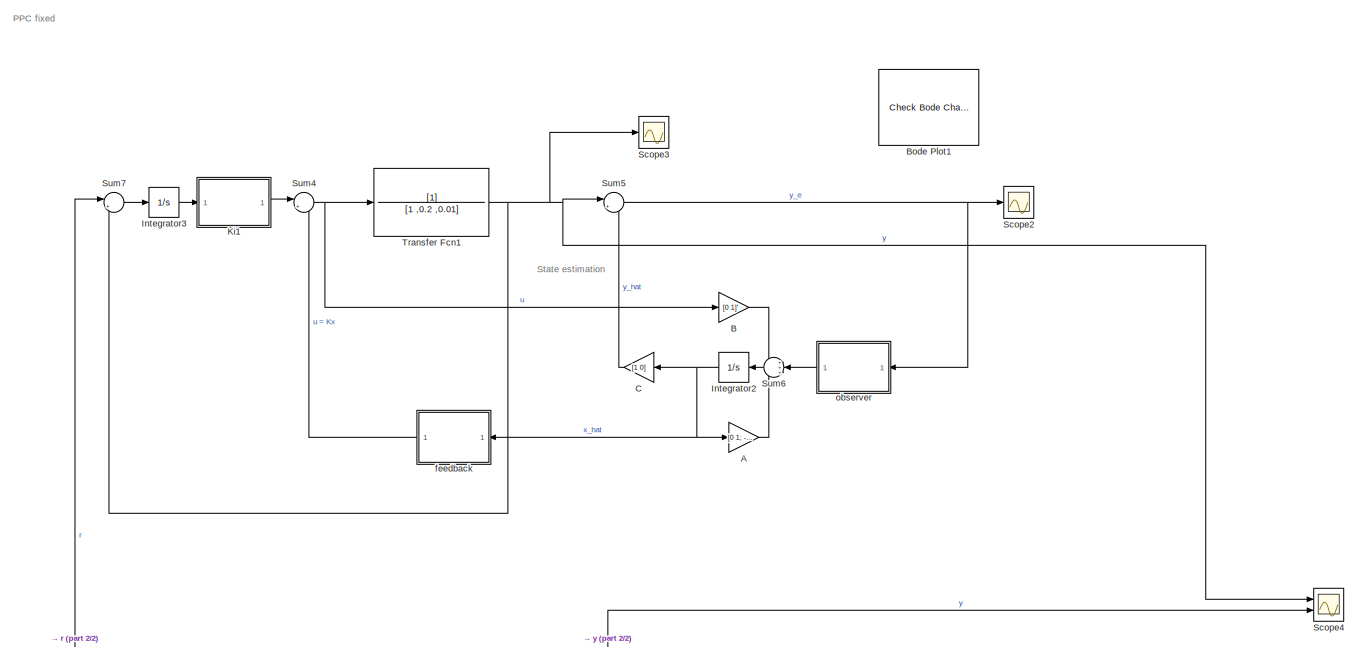
[diagram: root canvas - part 1/2, full width, top band]
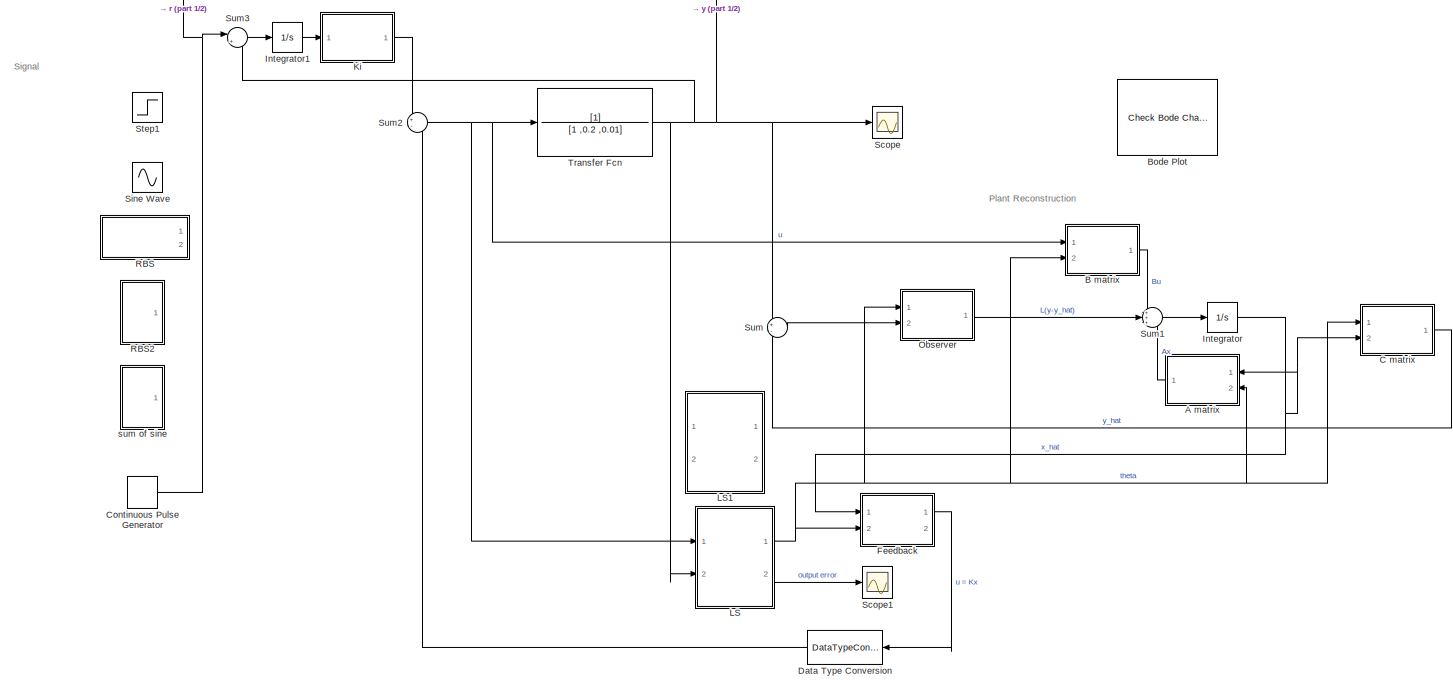
[diagram: root canvas - part 2/2, full width, bottom band]
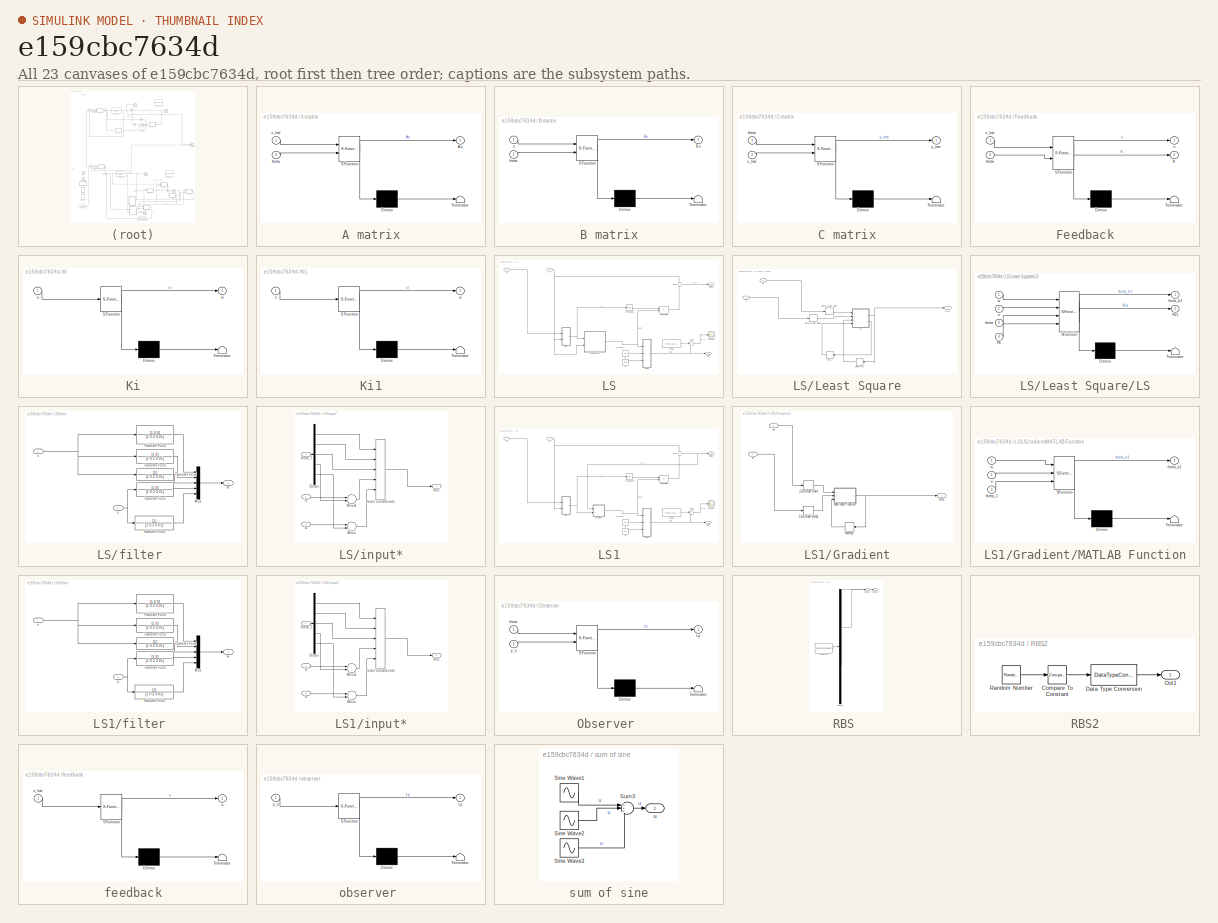
[diagram: thumbnail index - all 23 canvases of the model, root first then tree order]
MODEL slx_e159cbc7634d
KIND model
CONFIG AbsTol = auto
CONFIG EnableMultiTasking = off
CONFIG FixedStep = auto
CONFIG MaxStep = 0.01
CONFIG MinStep = auto
CONFIG RelTol = 1e-6
CONFIG SampleTimeConstraint = Unconstrained
CONFIG Solver = ode45
CONFIG SolverName = ode45
CONFIG StartTime = 0.0
CONFIG StopTime = 50
BLOCK [Gain] A
  Gain = [0 1; -0.01 -0.2]
  Multiplication = Matrix(K*u)
  OutDataTypeStr = Inherit: Inherit via internal rule
  ParamDataTypeStr = Inherit: Inherit via internal rule
  SaturateOnIntegerOverflow = off
BLOCK [SubSystem] A matrix
  ErrorFcn = Stateflow.Translate.translate
  PermitHierarchicalResolution = ExplicitOnly
  Ports = [2, 1]
  RequestExecContextInheritance = off
  SFBlockType = MATLAB Function
  TreatAsAtomicUnit = on
BLOCK [Demux] A matrix/ Demux 
  Outputs = 1
  Ports = [1, 1]
BLOCK [S-Function] A matrix/ SFunction 
  EnableBusSupport = on
  FunctionName = sf_sfun
  PortCounts = [2 2]
  Ports = [2, 2]
  SFcnIsStateOwnerBlock = off
  SFunctionDeploymentMode = off
  Tag = Stateflow S-Function 8
BLOCK [Terminator] A matrix/ Terminator 
BLOCK [Outport] A matrix/Ax
  IconDisplay = Port number
BLOCK [Inport] A matrix/theta
  IconDisplay = Port number
  Port = 2
BLOCK [Inport] A matrix/x_hat
  IconDisplay = Port number
BLOCK [Gain] B
  Gain = [0 1]'
  Multiplication = Matrix(K*u)
  OutDataTypeStr = Inherit: Inherit via internal rule
  ParamDataTypeStr = Inherit: Inherit via internal rule
  SaturateOnIntegerOverflow = off
BLOCK [SubSystem] B matrix
  ErrorFcn = Stateflow.Translate.translate
  PermitHierarchicalResolution = ExplicitOnly
  Ports = [2, 1]
  RequestExecContextInheritance = off
  SFBlockType = MATLAB Function
  TreatAsAtomicUnit = on
BLOCK [Demux] B matrix/ Demux 
  Outputs = 1
  Ports = [1, 1]
BLOCK [S-Function] B matrix/ SFunction 
  EnableBusSupport = on
  FunctionName = sf_sfun
  PortCounts = [2 2]
  Ports = [2, 2]
  SFcnIsStateOwnerBlock = off
  SFunctionDeploymentMode = off
  Tag = Stateflow S-Function 9
BLOCK [Terminator] B matrix/ Terminator 
BLOCK [Outport] B matrix/Bu
  IconDisplay = Port number
BLOCK [Inport] B matrix/theta
  IconDisplay = Port number
  Port = 2
BLOCK [Inport] B matrix/u
  IconDisplay = Port number
BLOCK [Reference] Bode Plot  REF=slctrlblks/Model Verification/Check Bode 
Characteristics
  InstantiateOnLoad = on
  Ports = []
  SourceBlock = slctrlblks/Model Verification/Check Bode \nCharacteristics
  SourceProductBaseCode = SD
  SourceProductName = Simulink Control Design
  SourceType = Checks_Bode
BLOCK [Reference] Bode Plot1  REF=slctrlblks/Model Verification/Check Bode 
Characteristics
  InstantiateOnLoad = on
  Ports = []
  SourceBlock = slctrlblks/Model Verification/Check Bode \nCharacteristics
  SourceProductBaseCode = SD
  SourceProductName = Simulink Control Design
  SourceType = Checks_Bode
BLOCK [Gain] C
  Gain = [1 0]
  Multiplication = Matrix(K*u)
  OutDataTypeStr = Inherit: Inherit via internal rule
  ParamDataTypeStr = Inherit: Inherit via internal rule
  SaturateOnIntegerOverflow = off
BLOCK [SubSystem] C matrix
  ErrorFcn = Stateflow.Translate.translate
  PermitHierarchicalResolution = ExplicitOnly
  Ports = [2, 1]
  RequestExecContextInheritance = off
  SFBlockType = MATLAB Function
  TreatAsAtomicUnit = on
BLOCK [Demux] C matrix/ Demux 
  Outputs = 1
  Ports = [1, 1]
BLOCK [S-Function] C matrix/ SFunction 
  EnableBusSupport = on
  FunctionName = sf_sfun
  PortCounts = [2 2]
  Ports = [2, 2]
  SFcnIsStateOwnerBlock = off
  SFunctionDeploymentMode = off
  Tag = Stateflow S-Function 7
BLOCK [Terminator] C matrix/ Terminator 
BLOCK [Inport] C matrix/theta
  IconDisplay = Port number
BLOCK [Inport] C matrix/x_hat
  IconDisplay = Port number
  Port = 2
BLOCK [Outport] C matrix/y_hat
  IconDisplay = Port number
BLOCK [DiscretePulseGenerator] Continuous Pulse Generator
  Period = 1
  Ports = [0, 1]
  PulseType = Time based
  PulseWidth = 50
BLOCK [DataTypeConversion] Data Type Conversion
  OutDataTypeStr = double
  RndMeth = Floor
  SaturateOnIntegerOverflow = off
BLOCK [SubSystem] Feedback
  ErrorFcn = Stateflow.Translate.translate
  PermitHierarchicalResolution = ExplicitOnly
  Ports = [2, 2]
  RequestExecContextInheritance = off
  SFBlockType = MATLAB Function
  TreatAsAtomicUnit = on
BLOCK [Demux] Feedback/ Demux 
  Outputs = 1
  Ports = [1, 1]
BLOCK [S-Function] Feedback/ SFunction 
  EnableBusSupport = on
  FunctionName = sf_sfun
  PortCounts = [2 3]
  Ports = [2, 3]
  SFcnIsStateOwnerBlock = off
  SFunctionDeploymentMode = off
  Tag = Stateflow S-Function 4
BLOCK [Terminator] Feedback/ Terminator 
BLOCK [Outport] Feedback/K
  IconDisplay = Port number
  Port = 2
BLOCK [Inport] Feedback/theta
  IconDisplay = Port number
  Port = 2
BLOCK [Outport] Feedback/u
  IconDisplay = Port number
BLOCK [Inport] Feedback/x_hat
  IconDisplay = Port number
BLOCK [Integrator] Integrator
  Ports = [1, 1]
BLOCK [Integrator] Integrator1
  Ports = [1, 1]
BLOCK [Integrator] Integrator2
  Ports = [1, 1]
BLOCK [Integrator] Integrator3
  Ports = [1, 1]
BLOCK [SubSystem] Ki
  ErrorFcn = Stateflow.Translate.translate
  PermitHierarchicalResolution = ExplicitOnly
  Ports = [1, 1]
  RequestExecContextInheritance = off
  SFBlockType = MATLAB Function
  TreatAsAtomicUnit = on
BLOCK [Demux] Ki/ Demux 
  Outputs = 1
  Ports = [1, 1]
BLOCK [S-Function] Ki/ SFunction 
  EnableBusSupport = on
  FunctionName = sf_sfun
  PortCounts = [1 2]
  Ports = [1, 2]
  SFcnIsStateOwnerBlock = off
  SFunctionDeploymentMode = off
  Tag = Stateflow S-Function 2
BLOCK [Terminator] Ki/ Terminator 
BLOCK [Inport] Ki/u
  IconDisplay = Port number
BLOCK [Outport] Ki/ui
  IconDisplay = Port number
BLOCK [SubSystem] Ki1
  ErrorFcn = Stateflow.Translate.translate
  PermitHierarchicalResolution = ExplicitOnly
  Ports = [1, 1]
  RequestExecContextInheritance = off
  SFBlockType = MATLAB Function
  TreatAsAtomicUnit = on
BLOCK [Demux] Ki1/ Demux 
  Outputs = 1
  Ports = [1, 1]
BLOCK [S-Function] Ki1/ SFunction 
  EnableBusSupport = on
  FunctionName = sf_sfun
  PortCounts = [1 2]
  Ports = [1, 2]
  SFcnIsStateOwnerBlock = off
  SFunctionDeploymentMode = off
  Tag = Stateflow S-Function 6
BLOCK [Terminator] Ki1/ Terminator 
BLOCK [Inport] Ki1/u
  IconDisplay = Port number
BLOCK [Outport] Ki1/ui
  IconDisplay = Port number
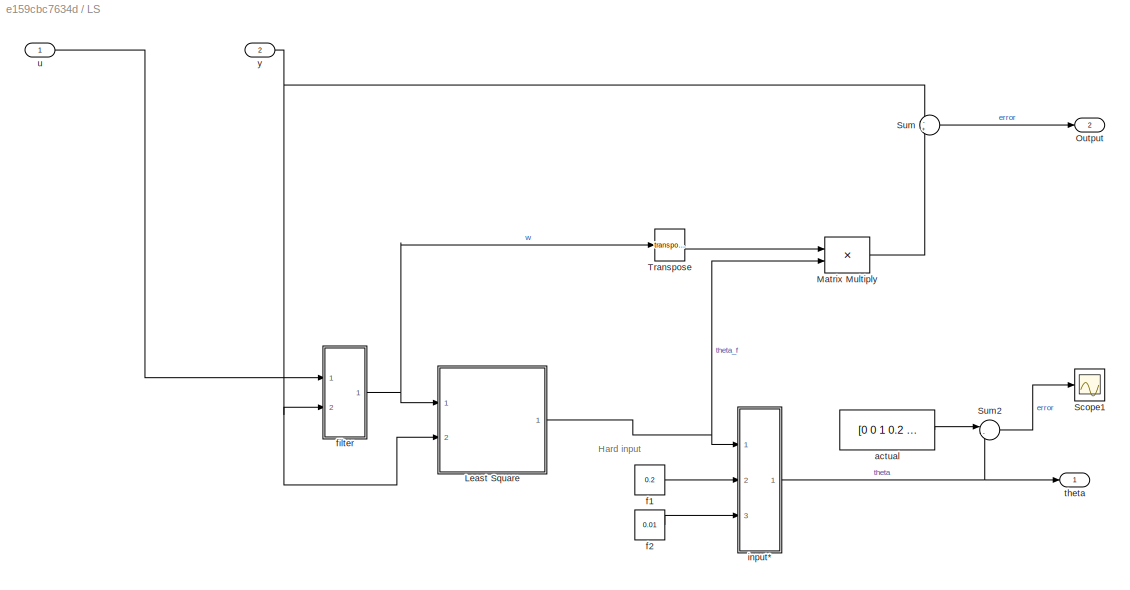
BLOCK [SubSystem] LS
  Ports = [2, 2]
  RequestExecContextInheritance = off
BLOCK [SubSystem] LS/Least Square
  Ports = [2, 1]
  RequestExecContextInheritance = off
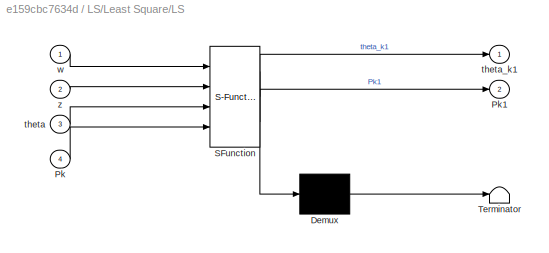
BLOCK [SubSystem] LS/Least Square/LS
  ErrorFcn = Stateflow.Translate.translate
  PermitHierarchicalResolution = ExplicitOnly
  Ports = [4, 2]
  RequestExecContextInheritance = off
  SFBlockType = MATLAB Function
  TreatAsAtomicUnit = on
BLOCK [Demux] LS/Least Square/LS/ Demux 
  Outputs = 1
  Ports = [1, 1]
BLOCK [S-Function] LS/Least Square/LS/ SFunction 
  EnableBusSupport = on
  FunctionName = sf_sfun
  PortCounts = [4 3]
  Ports = [4, 3]
  SFcnIsStateOwnerBlock = off
  SFunctionDeploymentMode = off
  Tag = Stateflow S-Function 1
BLOCK [Terminator] LS/Least Square/LS/ Terminator 
BLOCK [Inport] LS/Least Square/LS/Pk
  IconDisplay = Port number
  Port = 4
BLOCK [Outport] LS/Least Square/LS/Pk1
  IconDisplay = Port number
  Port = 2
BLOCK [Inport] LS/Least Square/LS/theta
  IconDisplay = Port number
  Port = 3
BLOCK [Outport] LS/Least Square/LS/theta_k1
  IconDisplay = Port number
BLOCK [Inport] LS/Least Square/LS/w
  IconDisplay = Port number
BLOCK [Inport] LS/Least Square/LS/z
  IconDisplay = Port number
  Port = 2
BLOCK [Outport] LS/Least Square/Out1
  IconDisplay = Port number
BLOCK [Memory] LS/Least Square/Pk+1
  InheritSampleTime = on
  InitialCondition = (10^5)*eye(5)
BLOCK [Memory] LS/Least Square/Theta k+1
  InheritSampleTime = on
  InitialCondition = [0.1 0 1.1 0.1 0.1]'
BLOCK [ZeroOrderHold] LS/Least Square/Zero-Order Hold
  SampleTime = 0.01
BLOCK [ZeroOrderHold] LS/Least Square/Zero-Order Hold1
  SampleTime = 0.01
BLOCK [Inport] LS/Least Square/w
  IconDisplay = Port number
BLOCK [Inport] LS/Least Square/y
  IconDisplay = Port number
  Port = 2
BLOCK [Product] LS/Matrix Multiply
  InputSameDT = off
  Multiplication = Matrix(*)
  OutDataTypeStr = Inherit: Inherit via internal rule
  Ports = [2, 1]
  RndMeth = Floor
  SaturateOnIntegerOverflow = off
BLOCK [Outport] LS/Output
  IconDisplay = Port number
  Port = 2
BLOCK [Scope] LS/Scope1
  Floating = off
  NumInputPorts = 1
  Ports = [1]
  ScopeSpecificationString = Simulink.scopes.TimeScopeBlockCfg('CurrentConfiguration', extmgr.ConfigurationSet(extmgr.Configuration('Core','General UI',true),extmgr.Configuration('Core','Source UI',true),extmgr.Configuration('Sources','WiredSimulink',true,'DataLoggingVariableName','ScopeData2'),extmgr.Configuration('Visuals','Time Domain',true,'SerializedDisplays',{struct('MinYLimReal','-0.1066','MaxYLimReal','0.10212','YLabe...<+1491ch>
BLOCK [Sum] LS/Sum
  IconShape = round
  InputSameDT = off
  Inputs = -+
  OutDataTypeStr = Inherit: Inherit via internal rule
  Ports = [2, 1]
  SaturateOnIntegerOverflow = off
BLOCK [Sum] LS/Sum2
  IconShape = round
  InputSameDT = off
  Inputs = |-+
  OutDataTypeStr = Inherit: Inherit via internal rule
  Ports = [2, 1]
  SaturateOnIntegerOverflow = off
BLOCK [Math] LS/Transpose
  Operator = transpose
  Ports = [1, 1]
  SignedPower = off
BLOCK [Constant] LS/actual
  Value = [0 0 1 0.2 0.01]'
BLOCK [Constant] LS/f1
  Value = 0.2
BLOCK [Constant] LS/f2
  Value = 0.01
BLOCK [SubSystem] LS/filter 
  Ports = [2, 1]
  RequestExecContextInheritance = off
BLOCK [Mux] LS/filter /Mux
  DisplayOption = bar
  Inputs = 5
  Ports = [5, 1]
BLOCK [TransferFcn] LS/filter /Transfer Fcn1
  Denominator = [1 0.2 0.01]
  Numerator = [1 0]
BLOCK [TransferFcn] LS/filter /Transfer Fcn2
  Denominator = [1 0.2 0.01]
BLOCK [TransferFcn] LS/filter /Transfer Fcn3
  Denominator = [1 0.2 0.01]
  Numerator = [1 0]
BLOCK [TransferFcn] LS/filter /Transfer Fcn4
  Denominator = [1 0.2 0.01]
BLOCK [TransferFcn] LS/filter /Transfer Fcn5
  Denominator = [1 0.2 0.01]
  Numerator = [1 0 0]
BLOCK [Inport] LS/filter /u 
  IconDisplay = Port number
BLOCK [Outport] LS/filter /w
  IconDisplay = Port number
BLOCK [Inport] LS/filter /y 
  IconDisplay = Port number
  Port = 2
BLOCK [SubSystem] LS/input*
  Ports = [3, 1]
  RequestExecContextInheritance = off
BLOCK [Demux] LS/input*/Demux
  DisplayOption = bar
  Outputs = 5
  Ports = [1, 5]
BLOCK [Sum] LS/input*/Minus
  InputSameDT = off
  Inputs = +-
  OutDataTypeStr = Inherit: Inherit via internal rule
  Ports = [2, 1]
  SaturateOnIntegerOverflow = off
BLOCK [Sum] LS/input*/Minus1
  InputSameDT = off
  Inputs = +-
  OutDataTypeStr = Inherit: Inherit via internal rule
  Ports = [2, 1]
  SaturateOnIntegerOverflow = off
BLOCK [Outport] LS/input*/Out1
  IconDisplay = Port number
BLOCK [Concatenate] LS/input*/Vector Concatenate
  NumInputs = 5
  Ports = [5, 1]
BLOCK [Inport] LS/input*/f1
  IconDisplay = Port number
  Port = 2
BLOCK [Inport] LS/input*/f2
  IconDisplay = Port number
  Port = 3
BLOCK [Inport] LS/input*/theta_f
  IconDisplay = Port number
BLOCK [Outport] LS/theta
  IconDisplay = Port number
BLOCK [Inport] LS/u 
  IconDisplay = Port number
BLOCK [Inport] LS/y
  IconDisplay = Port number
  Port = 2
BLOCK [SubSystem] LS1
  Ports = [2, 2]
  RequestExecContextInheritance = off
BLOCK [SubSystem] LS1/Gradient
  Ports = [2, 1]
  RequestExecContextInheritance = off
BLOCK [SubSystem] LS1/Gradient/MATLAB Function
  ErrorFcn = Stateflow.Translate.translate
  PermitHierarchicalResolution = ExplicitOnly
  Ports = [3, 1]
  RequestExecContextInheritance = off
  SFBlockType = MATLAB Function
  TreatAsAtomicUnit = on
BLOCK [Demux] LS1/Gradient/MATLAB Function/ Demux 
  Outputs = 1
  Ports = [1, 1]
BLOCK [S-Function] LS1/Gradient/MATLAB Function/ SFunction 
  EnableBusSupport = on
  FunctionName = sf_sfun
  PortCounts = [3 2]
  Ports = [3, 2]
  SFcnIsStateOwnerBlock = off
  SFunctionDeploymentMode = off
  Tag = Stateflow S-Function 3
BLOCK [Terminator] LS1/Gradient/MATLAB Function/ Terminator 
BLOCK [Inport] LS1/Gradient/MATLAB Function/e
  IconDisplay = Port number
  Port = 2
BLOCK [Inport] LS1/Gradient/MATLAB Function/theta_1
  IconDisplay = Port number
  Port = 3
BLOCK [Outport] LS1/Gradient/MATLAB Function/theta_k1
  IconDisplay = Port number
BLOCK [Inport] LS1/Gradient/MATLAB Function/w
  IconDisplay = Port number
BLOCK [Memory] LS1/Gradient/Memory
  InheritSampleTime = on
  InitialCondition = [0 0 0.9 0.000001 0.0000001]'
BLOCK [Outport] LS1/Gradient/Out1
  IconDisplay = Port number
BLOCK [ZeroOrderHold] LS1/Gradient/Zero-Order Hold
  SampleTime = 0.01
BLOCK [ZeroOrderHold] LS1/Gradient/Zero-Order Hold1
  SampleTime = 0.01
BLOCK [Inport] LS1/Gradient/e
  IconDisplay = Port number
BLOCK [Inport] LS1/Gradient/w
  IconDisplay = Port number
  Port = 2
BLOCK [Product] LS1/Matrix Multiply
  InputSameDT = off
  Multiplication = Matrix(*)
  OutDataTypeStr = Inherit: Inherit via internal rule
  Ports = [2, 1]
  RndMeth = Floor
  SaturateOnIntegerOverflow = off
BLOCK [Outport] LS1/Output
  IconDisplay = Port number
  Port = 2
BLOCK [Scope] LS1/Scope1
  Floating = off
  NumInputPorts = 1
  Ports = [1]
  ScopeSpecificationString = Simulink.scopes.TimeScopeBlockCfg('CurrentConfiguration', extmgr.ConfigurationSet(extmgr.Configuration('Core','General UI',true),extmgr.Configuration('Core','Source UI',true),extmgr.Configuration('Sources','WiredSimulink',true,'DataLoggingVariableName','ScopeData2'),extmgr.Configuration('Visuals','Time Domain',true,'SerializedDisplays',{struct('MinYLimReal','-0.11289','MaxYLimReal','0.01595','YLab...<+1406ch>
BLOCK [Sum] LS1/Sum
  IconShape = round
  InputSameDT = off
  Inputs = -+
  OutDataTypeStr = Inherit: Inherit via internal rule
  Ports = [2, 1]
  SaturateOnIntegerOverflow = off
BLOCK [Sum] LS1/Sum2
  IconShape = round
  InputSameDT = off
  Inputs = |-+
  OutDataTypeStr = Inherit: Inherit via internal rule
  Ports = [2, 1]
  SaturateOnIntegerOverflow = off
BLOCK [Math] LS1/Transpose
  Operator = transpose
  Ports = [1, 1]
  SignedPower = off
BLOCK [Constant] LS1/actual
  Value = [0 0 1 0.2 0.01]'
BLOCK [Constant] LS1/f1
  Value = 0.2
BLOCK [Constant] LS1/f2
  Value = 0.01
BLOCK [SubSystem] LS1/filter 
  Ports = [2, 1]
  RequestExecContextInheritance = off
BLOCK [Mux] LS1/filter /Mux
  DisplayOption = bar
  Inputs = 5
  Ports = [5, 1]
BLOCK [TransferFcn] LS1/filter /Transfer Fcn1
  Denominator = [1 0.2 0.01]
  Numerator = [1 0]
BLOCK [TransferFcn] LS1/filter /Transfer Fcn2
  Denominator = [1 0.2 0.01]
BLOCK [TransferFcn] LS1/filter /Transfer Fcn3
  Denominator = [1 0.2 0.01]
  Numerator = [1 0]
BLOCK [TransferFcn] LS1/filter /Transfer Fcn4
  Denominator = [1 0.2 0.01]
BLOCK [TransferFcn] LS1/filter /Transfer Fcn5
  Denominator = [1 0.2 0.01]
  Numerator = [1 0 0]
BLOCK [Inport] LS1/filter /u 
  IconDisplay = Port number
BLOCK [Outport] LS1/filter /w
  IconDisplay = Port number
BLOCK [Inport] LS1/filter /y 
  IconDisplay = Port number
  Port = 2
BLOCK [SubSystem] LS1/input*
  Ports = [3, 1]
  RequestExecContextInheritance = off
BLOCK [Demux] LS1/input*/Demux
  DisplayOption = bar
  Outputs = 5
  Ports = [1, 5]
BLOCK [Sum] LS1/input*/Minus
  InputSameDT = off
  Inputs = +-
  OutDataTypeStr = Inherit: Inherit via internal rule
  Ports = [2, 1]
  SaturateOnIntegerOverflow = off
BLOCK [Sum] LS1/input*/Minus1
  InputSameDT = off
  Inputs = +-
  OutDataTypeStr = Inherit: Inherit via internal rule
  Ports = [2, 1]
  SaturateOnIntegerOverflow = off
BLOCK [Outport] LS1/input*/Out1
  IconDisplay = Port number
BLOCK [Concatenate] LS1/input*/Vector Concatenate
  NumInputs = 5
  Ports = [5, 1]
BLOCK [Inport] LS1/input*/f1
  IconDisplay = Port number
  Port = 2
BLOCK [Inport] LS1/input*/f2
  IconDisplay = Port number
  Port = 3
BLOCK [Inport] LS1/input*/theta_f
  IconDisplay = Port number
BLOCK [Outport] LS1/theta
  IconDisplay = Port number
BLOCK [Inport] LS1/u 
  IconDisplay = Port number
BLOCK [Inport] LS1/y
  IconDisplay = Port number
  Port = 2
BLOCK [SubSystem] Observer 
  ErrorFcn = Stateflow.Translate.translate
  PermitHierarchicalResolution = ExplicitOnly
  Ports = [2, 1]
  RequestExecContextInheritance = off
  SFBlockType = MATLAB Function
  TreatAsAtomicUnit = on
BLOCK [Demux] Observer / Demux 
  Outputs = 1
  Ports = [1, 1]
BLOCK [S-Function] Observer / SFunction 
  EnableBusSupport = on
  FunctionName = sf_sfun
  PortCounts = [2 2]
  Ports = [2, 2]
  SFcnIsStateOwnerBlock = off
  SFunctionDeploymentMode = off
  Tag = Stateflow S-Function 5
BLOCK [Terminator] Observer / Terminator 
BLOCK [Outport] Observer /Ly
  IconDisplay = Port number
BLOCK [Inport] Observer /theta
  IconDisplay = Port number
BLOCK [Inport] Observer /y_e
  IconDisplay = Port number
  Port = 2
BLOCK [SubSystem] RBS 
  ClipboardFcn = sigbuilder_block('clipboard');
  CloseFcn = sigbuilder_block('close');
  ContinueFcn = sigbuilder_block('continue');
  CopyFcn = sigbuilder_block('copy');
  DeleteFcn = sigbuilder_block('delete');
  LoadFcn = sigbuilder_block('load');
  MaskHideContents = on
  ModelCloseFcn = sigbuilder_block('modelClose');
  NameChangeFcn = sigbuilder_block('namechange');
  OpenFcn = sigbuilder_block('open',[215 62.5 550.5 362.5 ]);
  PauseFcn = sigbuilder_block('pause');
  Ports = [0, 2]
  PreSaveFcn = sigbuilder_block('preSave');
  RequestExecContextInheritance = off
  StartFcn = sigbuilder_block('start');
  StopFcn = sigbuilder_block('stop');
  Tag = STV Subsys
BLOCK [Demux] RBS /Demux
  Outputs = 2
  Ports = [1, 2]
  Tag = STV Demux
BLOCK [FromWorkspace] RBS /FromWs
  SampleTime = 0
  Tag = STV FromWs
  VariableName = tuvar
  ZeroCross = on
BLOCK [Outport] RBS /Signal 1
  IconDisplay = Port number
  Tag = STV Outport
BLOCK [Outport] RBS /Signal 2
  IconDisplay = Port number
  Port = 2
  Tag = STV Outport
BLOCK [SubSystem] RBS2
  Ports = [0, 1]
  RequestExecContextInheritance = off
BLOCK [Reference] RBS2/Compare To Constant  REF=simulink/Logic and Bit
Operations/Compare
To Constant
  Ports = [1, 1]
  SourceBlock = simulink/Logic and Bit\nOperations/Compare\nTo Constant
  SourceProductBaseCode = SL
  SourceProductName = Simulink
  SourceType = Compare To Constant
BLOCK [DataTypeConversion] RBS2/Data Type Conversion
  OutDataTypeStr = double
  RndMeth = Floor
  SaturateOnIntegerOverflow = off
BLOCK [Outport] RBS2/Out1
  IconDisplay = Port number
BLOCK [RandomNumber] RBS2/Random Number
  Mean = 1
  SampleTime = 10
BLOCK [Scope] Scope
  Floating = off
  NumInputPorts = 1
  Ports = [1]
  ScopeSpecificationString = Simulink.scopes.TimeScopeBlockCfg('CurrentConfiguration', extmgr.ConfigurationSet(extmgr.Configuration('Core','General UI',true),extmgr.Configuration('Core','Source UI',true),extmgr.Configuration('Sources','WiredSimulink',true,'DataLoggingVariableName','ScopeData1'),extmgr.Configuration('Visuals','Time Domain',true,'SerializedDisplays',{struct('MinYLimReal','-0.02561','MaxYLimReal','1.03214','YLab...<+1447ch>
BLOCK [Scope] Scope1
  Floating = off
  NumInputPorts = 1
  Ports = [1]
  ScopeSpecificationString = Simulink.scopes.TimeScopeBlockCfg('CurrentConfiguration', extmgr.ConfigurationSet(extmgr.Configuration('Core','General UI',true),extmgr.Configuration('Core','Source UI',true),extmgr.Configuration('Sources','WiredSimulink',true,'DataLoggingVariableName','ScopeData1'),extmgr.Configuration('Visuals','Time Domain',true,'SerializedDisplays',{struct('MinYLimReal','-1.00000','MaxYLimReal','1.00000','YLab...<+1416ch>
BLOCK [Scope] Scope2
  Floating = off
  NumInputPorts = 1
  Ports = [1]
  ScopeSpecificationString = Simulink.scopes.TimeScopeBlockCfg('CurrentConfiguration', extmgr.ConfigurationSet(extmgr.Configuration('Core','General UI',true),extmgr.Configuration('Core','Source UI',true),extmgr.Configuration('Sources','WiredSimulink',true,'DataLoggingVariableName','ScopeData1'),extmgr.Configuration('Visuals','Time Domain',true,'SerializedDisplays',{struct('MinYLimReal','-0.000000000000000016','MaxYLimReal','0...<+1503ch>
BLOCK [Scope] Scope3
  Floating = off
  NumInputPorts = 1
  Ports = [1]
  ScopeSpecificationString = Simulink.scopes.TimeScopeBlockCfg('CurrentConfiguration', extmgr.ConfigurationSet(extmgr.Configuration('Core','General UI',true),extmgr.Configuration('Core','Source UI',true),extmgr.Configuration('Sources','WiredSimulink',true,'DataLoggingVariableName','ScopeData2'),extmgr.Configuration('Visuals','Time Domain',true,'SerializedDisplays',{struct('MinYLimReal','-0.04688','MaxYLimReal','1.04116','YLab...<+1442ch>
BLOCK [Scope] Scope4
  Floating = off
  NumInputPorts = 2
  Ports = [2]
  ScopeSpecificationString = Simulink.scopes.TimeScopeBlockCfg('CurrentConfiguration', extmgr.ConfigurationSet(extmgr.Configuration('Core','General UI',true),extmgr.Configuration('Core','Source UI',true),extmgr.Configuration('Sources','WiredSimulink',true,'DataLoggingVariableName','ScopeData3'),extmgr.Configuration('Visuals','Time Domain',true,'SerializedDisplays',{struct('MinYLimReal','-0.08201','MaxYLimReal','1.05618','YLab...<+1496ch>
BLOCK [Sin] Sine Wave
  Frequency = 0.1
  Ports = [0, 1]
  SampleTime = 0
BLOCK [Step] Step1
  SampleTime = 0
BLOCK [Sum] Sum
  IconShape = round
  InputSameDT = off
  Inputs = +-
  OutDataTypeStr = Inherit: Inherit via internal rule
  Ports = [2, 1]
  SaturateOnIntegerOverflow = off
BLOCK [Sum] Sum1
  IconShape = round
  InputSameDT = off
  Inputs = +++
  OutDataTypeStr = Inherit: Inherit via internal rule
  Ports = [3, 1]
  SaturateOnIntegerOverflow = off
BLOCK [Sum] Sum2
  IconShape = round
  InputSameDT = off
  Inputs = +-
  OutDataTypeStr = Inherit: Inherit via internal rule
  Ports = [2, 1]
  SaturateOnIntegerOverflow = off
BLOCK [Sum] Sum3
  IconShape = round
  InputSameDT = off
  Inputs = |+-
  OutDataTypeStr = Inherit: Inherit via internal rule
  Ports = [2, 1]
  SaturateOnIntegerOverflow = off
BLOCK [Sum] Sum4
  IconShape = round
  InputSameDT = off
  Inputs = |+-
  OutDataTypeStr = Inherit: Inherit via internal rule
  Ports = [2, 1]
  SaturateOnIntegerOverflow = off
BLOCK [Sum] Sum5
  IconShape = round
  InputSameDT = off
  Inputs = |+-
  OutDataTypeStr = Inherit: Inherit via internal rule
  Ports = [2, 1]
  SaturateOnIntegerOverflow = off
BLOCK [Sum] Sum6
  IconShape = round
  InputSameDT = off
  Inputs = +++
  OutDataTypeStr = Inherit: Inherit via internal rule
  Ports = [3, 1]
  SaturateOnIntegerOverflow = off
BLOCK [Sum] Sum7
  IconShape = round
  InputSameDT = off
  Inputs = |+-
  OutDataTypeStr = Inherit: Inherit via internal rule
  Ports = [2, 1]
  SaturateOnIntegerOverflow = off
BLOCK [TransferFcn] Transfer Fcn
  Denominator = [1 ,0.2 ,0.01]
BLOCK [TransferFcn] Transfer Fcn1
  Denominator = [1 ,0.2 ,0.01]
BLOCK [SubSystem] feedback
  ErrorFcn = Stateflow.Translate.translate
  PermitHierarchicalResolution = ExplicitOnly
  Ports = [1, 1]
  RequestExecContextInheritance = off
  SFBlockType = MATLAB Function
  TreatAsAtomicUnit = on
BLOCK [Demux] feedback/ Demux 
  Outputs = 1
  Ports = [1, 1]
BLOCK [S-Function] feedback/ SFunction 
  EnableBusSupport = on
  FunctionName = sf_sfun
  PortCounts = [1 2]
  Ports = [1, 2]
  SFcnIsStateOwnerBlock = off
  SFunctionDeploymentMode = off
  Tag = Stateflow S-Function 10
BLOCK [Terminator] feedback/ Terminator 
BLOCK [Outport] feedback/u
  IconDisplay = Port number
BLOCK [Inport] feedback/x_hat
  IconDisplay = Port number
BLOCK [SubSystem] observer 
  ErrorFcn = Stateflow.Translate.translate
  PermitHierarchicalResolution = ExplicitOnly
  Ports = [1, 1]
  RequestExecContextInheritance = off
  SFBlockType = MATLAB Function
  TreatAsAtomicUnit = on
BLOCK [Demux] observer / Demux 
  Outputs = 1
  Ports = [1, 1]
BLOCK [S-Function] observer / SFunction 
  EnableBusSupport = on
  FunctionName = sf_sfun
  PortCounts = [1 2]
  Ports = [1, 2]
  SFcnIsStateOwnerBlock = off
  SFunctionDeploymentMode = off
  Tag = Stateflow S-Function 11
BLOCK [Terminator] observer / Terminator 
BLOCK [Outport] observer /Ly
  IconDisplay = Port number
BLOCK [Inport] observer /y_e
  IconDisplay = Port number
BLOCK [SubSystem] sum of sine
  Ports = [0, 1]
  RequestExecContextInheritance = off
BLOCK [Sin] sum of sine/Sine Wave1
  Frequency = 0.1
  Phase = 0.1
  Ports = [0, 1]
  SampleTime = 0
BLOCK [Sin] sum of sine/Sine Wave2
  Ports = [0, 1]
  SampleTime = 0
BLOCK [Sin] sum of sine/Sine Wave3
  Frequency = 2
  Ports = [0, 1]
  SampleTime = 0
BLOCK [Sum] sum of sine/Sum3
  IconShape = round
  InputSameDT = off
  Inputs = +++
  OutDataTypeStr = Inherit: Inherit via internal rule
  Ports = [3, 1]
  SaturateOnIntegerOverflow = off
BLOCK [Outport] sum of sine/u
  IconDisplay = Port number
ANNOTATION (root): PPC fixed
ANNOTATION (root): Plant Reconstruction
ANNOTATION (root): Signal
ANNOTATION (root): State estimation
ANNOTATION LS: Hard input
ANNOTATION LS1: Hard input
LINE A matrix:1 -> Sum1:3
LINE A:1 -> Sum6:3
LINE B matrix:1 -> Sum1:1
LINE B:1 -> Sum6:1
LINE C matrix:1 -> Sum:2
LINE C:1 -> Sum5:2
NET Continuous Pulse Generator:1 -> Sum3:1, Sum7:1
LINE Data Type Conversion:1 -> Sum2:2
LINE Feedback:1 -> Data Type Conversion:1
LINE Integrator1:1 -> Ki:1
NET Integrator2:1 -> A:1, C:1, feedback:1
LINE Integrator3:1 -> Ki1:1
NET Integrator:1 -> A matrix:1, C matrix:2, Feedback:1
LINE Ki1:1 -> Sum4:1
LINE Ki:1 -> Sum2:1
NET LS/Least Square/LS:1 -> LS/Least Square/Out1:1, LS/Least Square/Theta k+1:1
LINE LS/Least Square/LS:2 -> LS/Least Square/Pk+1:1
LINE LS/Least Square/Pk+1:1 -> LS/Least Square/LS:4
LINE LS/Least Square/Theta k+1:1 -> LS/Least Square/LS:3
LINE LS/Least Square/Zero-Order Hold1:1 -> LS/Least Square/LS:2
LINE LS/Least Square/Zero-Order Hold:1 -> LS/Least Square/LS:1
LINE LS/Least Square/w:1 -> LS/Least Square/Zero-Order Hold:1
LINE LS/Least Square/y:1 -> LS/Least Square/Zero-Order Hold1:1
NET LS/Least Square:1 -> LS/Matrix Multiply:2, LS/input*:1
LINE LS/Matrix Multiply:1 -> LS/Sum:2
LINE LS/Sum2:1 -> LS/Scope1:1
LINE LS/Sum:1 -> LS/Output:1
LINE LS/Transpose:1 -> LS/Matrix Multiply:1
LINE LS/actual:1 -> LS/Sum2:1
LINE LS/f1:1 -> LS/input*:2
LINE LS/f2:1 -> LS/input*:3
LINE LS/filter /Mux:1 -> LS/filter /w:1
LINE LS/filter /Transfer Fcn1:1 -> LS/filter /Mux:4
LINE LS/filter /Transfer Fcn2:1 -> LS/filter /Mux:5
LINE LS/filter /Transfer Fcn3:1 -> LS/filter /Mux:2
LINE LS/filter /Transfer Fcn4:1 -> LS/filter /Mux:3
LINE LS/filter /Transfer Fcn5:1 -> LS/filter /Mux:1
NET LS/filter /u :1 -> LS/filter /Transfer Fcn3:1, LS/filter /Transfer Fcn4:1, LS/filter /Transfer Fcn5:1
NET LS/filter /y :1 -> LS/filter /Transfer Fcn1:1, LS/filter /Transfer Fcn2:1
NET LS/filter :1 -> LS/Least Square:1, LS/Transpose:1
LINE LS/input*/Demux:1 -> LS/input*/Vector Concatenate:1
LINE LS/input*/Demux:2 -> LS/input*/Vector Concatenate:2
LINE LS/input*/Demux:3 -> LS/input*/Vector Concatenate:3
LINE LS/input*/Demux:4 -> LS/input*/Minus1:2
LINE LS/input*/Demux:5 -> LS/input*/Minus:2
LINE LS/input*/Minus1:1 -> LS/input*/Vector Concatenate:4
LINE LS/input*/Minus:1 -> LS/input*/Vector Concatenate:5
LINE LS/input*/Vector Concatenate:1 -> LS/input*/Out1:1
LINE LS/input*/f1:1 -> LS/input*/Minus1:1
LINE LS/input*/f2:1 -> LS/input*/Minus:1
LINE LS/input*/theta_f:1 -> LS/input*/Demux:1
NET LS/input*:1 -> LS/Sum2:2, LS/theta:1
LINE LS/u :1 -> LS/filter :1
NET LS/y:1 -> LS/Least Square:2, LS/Sum:1, LS/filter :2
NET LS1/Gradient/MATLAB Function:1 -> LS1/Gradient/Memory:1, LS1/Gradient/Out1:1
LINE LS1/Gradient/Memory:1 -> LS1/Gradient/MATLAB Function:3
LINE LS1/Gradient/Zero-Order Hold1:1 -> LS1/Gradient/MATLAB Function:2
LINE LS1/Gradient/Zero-Order Hold:1 -> LS1/Gradient/MATLAB Function:1
LINE LS1/Gradient/e:1 -> LS1/Gradient/Zero-Order Hold1:1
LINE LS1/Gradient/w:1 -> LS1/Gradient/Zero-Order Hold:1
NET LS1/Gradient:1 -> LS1/Matrix Multiply:2, LS1/input*:1
LINE LS1/Matrix Multiply:1 -> LS1/Sum:2
LINE LS1/Sum2:1 -> LS1/Scope1:1
NET LS1/Sum:1 -> LS1/Gradient:1, LS1/Output:1
LINE LS1/Transpose:1 -> LS1/Matrix Multiply:1
LINE LS1/actual:1 -> LS1/Sum2:1
LINE LS1/f1:1 -> LS1/input*:2
LINE LS1/f2:1 -> LS1/input*:3
LINE LS1/filter /Mux:1 -> LS1/filter /w:1
LINE LS1/filter /Transfer Fcn1:1 -> LS1/filter /Mux:4
LINE LS1/filter /Transfer Fcn2:1 -> LS1/filter /Mux:5
LINE LS1/filter /Transfer Fcn3:1 -> LS1/filter /Mux:2
LINE LS1/filter /Transfer Fcn4:1 -> LS1/filter /Mux:3
LINE LS1/filter /Transfer Fcn5:1 -> LS1/filter /Mux:1
NET LS1/filter /u :1 -> LS1/filter /Transfer Fcn3:1, LS1/filter /Transfer Fcn4:1, LS1/filter /Transfer Fcn5:1
NET LS1/filter /y :1 -> LS1/filter /Transfer Fcn1:1, LS1/filter /Transfer Fcn2:1
NET LS1/filter :1 -> LS1/Gradient:2, LS1/Transpose:1
LINE LS1/input*/Demux:1 -> LS1/input*/Vector Concatenate:1
LINE LS1/input*/Demux:2 -> LS1/input*/Vector Concatenate:2
LINE LS1/input*/Demux:3 -> LS1/input*/Vector Concatenate:3
LINE LS1/input*/Demux:4 -> LS1/input*/Minus1:2
LINE LS1/input*/Demux:5 -> LS1/input*/Minus:2
LINE LS1/input*/Minus1:1 -> LS1/input*/Vector Concatenate:4
LINE LS1/input*/Minus:1 -> LS1/input*/Vector Concatenate:5
LINE LS1/input*/Vector Concatenate:1 -> LS1/input*/Out1:1
LINE LS1/input*/f1:1 -> LS1/input*/Minus1:1
LINE LS1/input*/f2:1 -> LS1/input*/Minus:1
LINE LS1/input*/theta_f:1 -> LS1/input*/Demux:1
NET LS1/input*:1 -> LS1/Sum2:2, LS1/theta:1
LINE LS1/u :1 -> LS1/filter :1
NET LS1/y:1 -> LS1/Sum:1, LS1/filter :2
NET LS:1 -> A matrix:2, B matrix:2, C matrix:1, Feedback:2, Observer :1
LINE LS:2 -> Scope1:1
LINE Observer :1 -> Sum1:2
LINE RBS2/Compare To Constant:1 -> RBS2/Data Type Conversion:1
LINE RBS2/Data Type Conversion:1 -> RBS2/Out1:1
LINE RBS2/Random Number:1 -> RBS2/Compare To Constant:1
LINE Sum1:1 -> Integrator:1
NET Sum2:1 -> B matrix:1, LS:1, Transfer Fcn:1
LINE Sum3:1 -> Integrator1:1
NET Sum4:1 -> B:1, Transfer Fcn1:1
NET Sum5:1 -> Scope2:1, observer :1
LINE Sum6:1 -> Integrator2:1
LINE Sum7:1 -> Integrator3:1
LINE Sum:1 -> Observer :2
NET Transfer Fcn1:1 -> Scope3:1, Scope4:1, Sum5:1, Sum7:2
NET Transfer Fcn:1 -> LS:2, Scope4:2, Scope:1, Sum3:2, Sum:1
LINE feedback:1 -> Sum4:2
LINE observer :1 -> Sum6:2
LINE sum of sine/Sine Wave1:1 -> sum of sine/Sum3:1
LINE sum of sine/Sine Wave2:1 -> sum of sine/Sum3:2
LINE sum of sine/Sine Wave3:1 -> sum of sine/Sum3:3
LINE sum of sine/Sum3:1 -> sum of sine/u:1
note: NET lines group one-source signal fan-out (src -> all destinations, sorted); 1:1 wires keep LINE
CHART LS/Least Square/LS states=1 transitions=1
  STATE_LABEL 'eML_blk_kernel()'
  STATE_LABEL "SCRIPT:\nfunction [ theta_k1,Pk1] = fcn(w, z, theta, Pk)\nalpha = 1; %standard\ngamma = 1/alpha;\n%e = 10^-4;\n%Q = e*eye(5);\n%Pk = eye(5);\n\n%initial values\n%ro = 10^5;\n%P1 = ro*eye(5);\n%theta1 = [0 0 1 0.2 0.01]';\n%Calculations\n\ntheta_k1 = theta - (gamma*Pk*w*(w'*theta-z))/ (1+gamma*w'*Pk*w);\nPk1 = (1/alpha)*Pk - ((gamma^2*Pk*w*w'*Pk)/(1+gamma*w'*Pk*w));\n"
CHART Ki states=1 transitions=1
  STATE_LABEL 'eML_blk_kernel()'
  STATE_LABEL 'SCRIPT:\nfunction ui = fcn(u)\n coder.extrinsic("ss","place","matsplit",\'ctrb\');\n% [b2, b1, b0, a1, a0] = matsplit(theta);\nui = 0;\nA = [0 1; -0.01 -0.2];\nB = [0 1]\';\nC = [1 0];\n\no = [0 0]\';\nA1 = [A o;C 0];\nB1 = [B;0];\np = [-30+0.69805i -30-0.69805i -50];\nK1 = place(A1,B1,p);\nKi = [K1(3)];\nui = Ki*u;\n'
CHART LS1/Gradient/MATLAB Function states=1 transitions=1
  STATE_LABEL 'eML_blk_kernel()'
  STATE_LABEL "SCRIPT:\nfunction theta_k1 = fcn(w, e, theta_1)\n%gamma = 0.000001;\ntheta_k1 = [0 0 0 0 0]';\ntheta_dot = [0 0 0 0 0]';\n\nalpha = 0.000001;\ndt = 0.01;\nI = eye(5);\ngamma = alpha*I;\ntheta_dot = -gamma*w*e;\ntheta_k1 = theta_1 + theta_dot*dt;\n"
CHART Feedback states=1 transitions=1
  STATE_LABEL 'eML_blk_kernel()'
  STATE_LABEL 'SCRIPT:\nfunction [u,K] = fcn(x_hat, theta)\n coder.extrinsic("ss","place","matsplit",\'ctrb\');\n% [b2, b1, b0, a1, a0] = matsplit(theta);\nK = [0 0];\nu = 0;\nA = [0 1; -theta(5) -theta(4)];\nB = [0 1]\';\nC = [theta(3) theta(2)];\n% D = 0;\n% %sys = ss(A,B,C,D);\n% p = [-.1+0.69805i -.1-0.69805i];\n% K = place(A,B,p);\n\n% a0 = theta(5); a1 = theta(4); %values of A in CCF\n% p1 = -1; p2 = -1; % desired pole valu...<+250ch>'
CHART Observer
 states=1 transitions=1
  STATE_LABEL 'eML_blk_kernel()'
  STATE_LABEL "SCRIPT:\nfunction Ly = fcn(theta, y_e)\n coder.extrinsic('ss','place','pole','matsplit','complex','real','imag','ctrb');\n Ly = [0 0];\n% %place pole 10 times to the left from the actual plant\n% %[b2, b1, b0, a1, a0] = matsplit(theta);\nA = [0 1; -theta(5) -theta(4)];\nB = [0 1]';\nC = [theta(3) theta(2)];\n%sys = ss(A,B,C,0);\n%p = pole(sys);\n%p_des = [complex(10*real(p(1)),imag(p(1))) complex(10*real(p(2...<+367ch>"
CHART Ki1 states=1 transitions=1
  STATE_LABEL 'eML_blk_kernel()'
  STATE_LABEL 'SCRIPT:\nfunction ui = fcn(u)\n coder.extrinsic("ss","place","matsplit",\'ctrb\');\n% [b2, b1, b0, a1, a0] = matsplit(theta);\nui = 0;\nA = [0 1; -0.01 -0.2];\nB = [0 1]\';\nC = [1 0];\n\no = [0 0]\';\nA1 = [A o;C 0];\nB1 = [B;0];\np = [-30+0.69805i -30-0.69805i -50];\nK1 = place(A1,B1,p);\nKi = [K1(3)];\nui = Ki*u;\n'
CHART C matrix states=1 transitions=1
  STATE_LABEL 'eML_blk_kernel()'
  STATE_LABEL 'SCRIPT:\nfunction y_hat = fcn(theta, x_hat)\n%coder.extrinsic("matsplit");\n%[b2, b1, b0, a1, a0] = matsplit(theta);\n%C = [b0 b1];\nC = [theta(3) theta(2)];\ny_hat = C*x_hat;\n'
CHART A matrix states=1 transitions=1
  STATE_LABEL 'eML_blk_kernel()'
  STATE_LABEL 'SCRIPT:\nfunction Ax = fcn(x_hat, theta)\n%coder.extrinsic("matsplit");\n%[b2, b1, b0, a1, a0] = matsplit(theta);\nA = [0 1; -theta(5) -theta(4)];\n\nAx = A*x_hat;\n'
CHART B matrix states=1 transitions=1
  STATE_LABEL 'eML_blk_kernel()'
  STATE_LABEL 'SCRIPT:\nfunction Bu = fcn(u, theta)\n%coder.extrinsic("matsplit");\n%[b2, b1, b0, a1, a0] = matsplit(theta);\nB = [0 1]\';\nBu = B*u;\n'
CHART feedback states=1 transitions=1
  STATE_LABEL 'eML_blk_kernel()'
  STATE_LABEL 'SCRIPT:\nfunction u = fcn(x_hat)\n coder.extrinsic("ss","place","matsplit",\'ctrb\');\n% [b2, b1, b0, a1, a0] = matsplit(theta);\nK = [0 0];\nu = 0;\nA = [0 1; -0.01 -0.2];\nB = [0 1]\';\nC = [1 0];\n\n%servomechanism\no = [0 0]\';\nA1 = [A o;C 0];\nB1 = [B;0];\np = [-30+0.69805i -30-0.69805i -50]; %let third pole be less affective\nK1 = place(A1,B1,p);\nK = [K1(1) K1(2)];\nu = K*x_hat;\n'
CHART observer
 states=1 transitions=1
  STATE_LABEL 'eML_blk_kernel()'
  STATE_LABEL 'SCRIPT:\nfunction Ly  = fcn(y_e)\ncoder.extrinsic("ss","place","matsplit",\'ctrb\');\nLy = [0 0];\nA = [0 1; -0.01 -0.2];\nB = [0 1]\';\nC = [1 0];\n\n%observer design\na0 = 0.01;\na1 = 0.2;\nP = ctrb(A,B);\nPccf1 = [a1 1; 1 0];\np1 = -10; p2 = -10; \nalpha = [-(p1+p2) p1*p2];\nL = [alpha(2)-a0 alpha(1)-a1]*inv(P*Pccf1);\nLy = L*y_e;\n\n\n\n'
